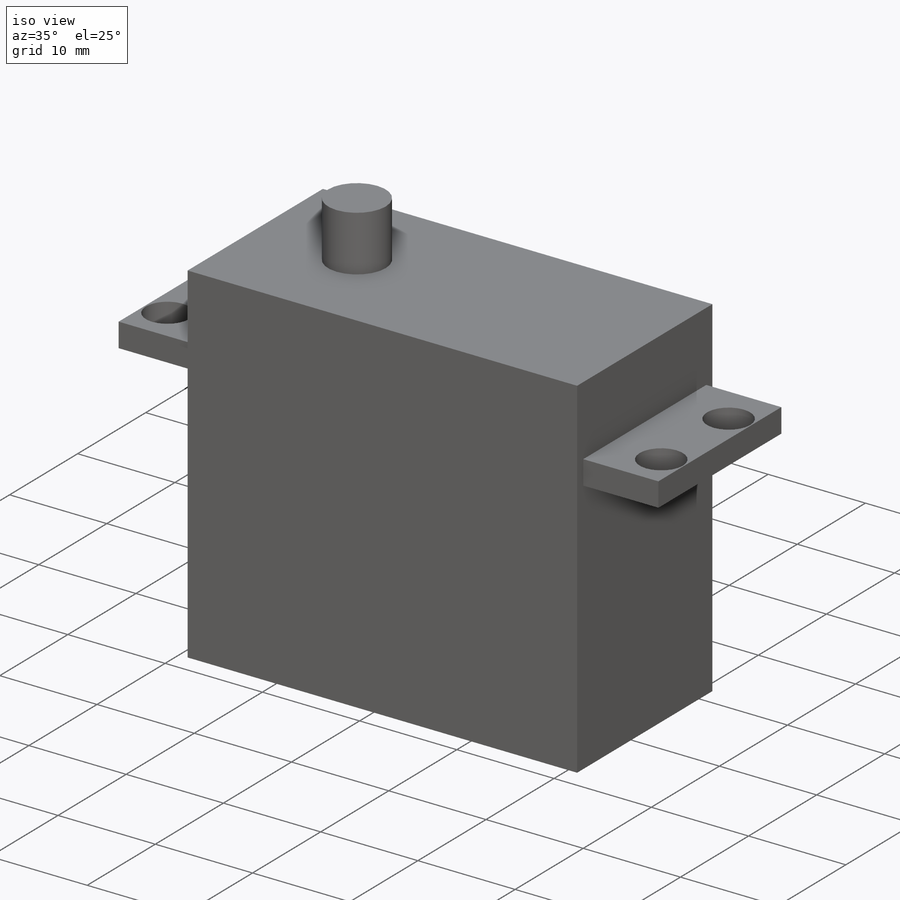
[diagram: iso view]
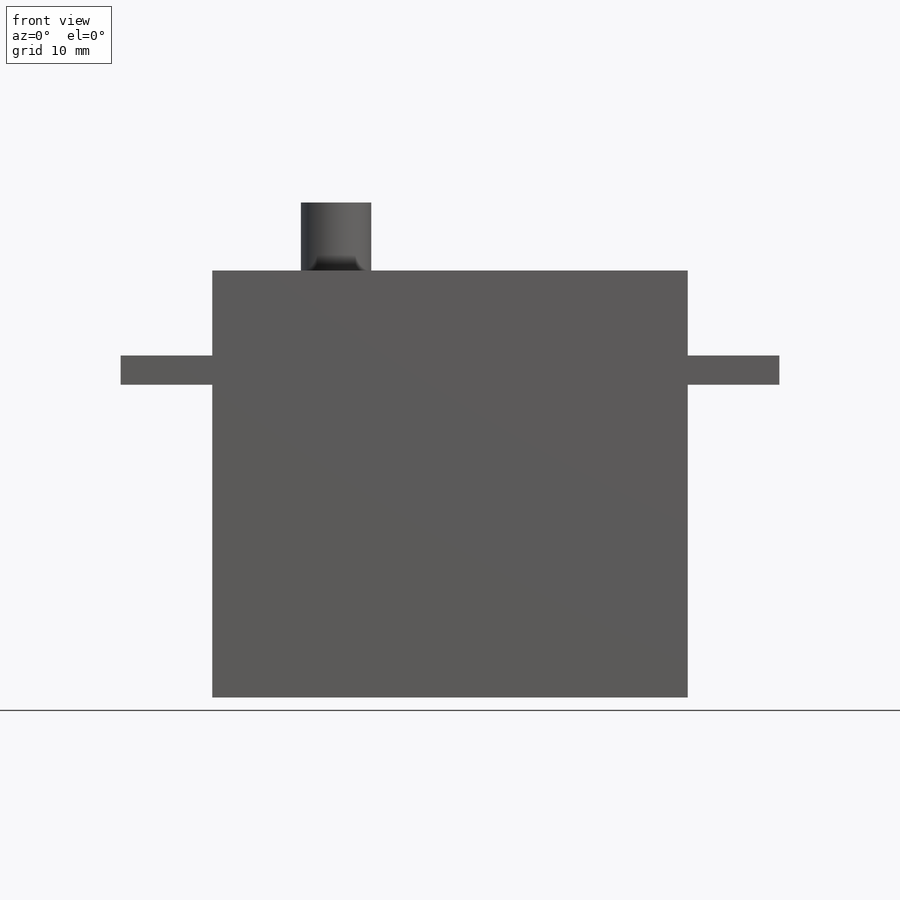
[diagram: front view]
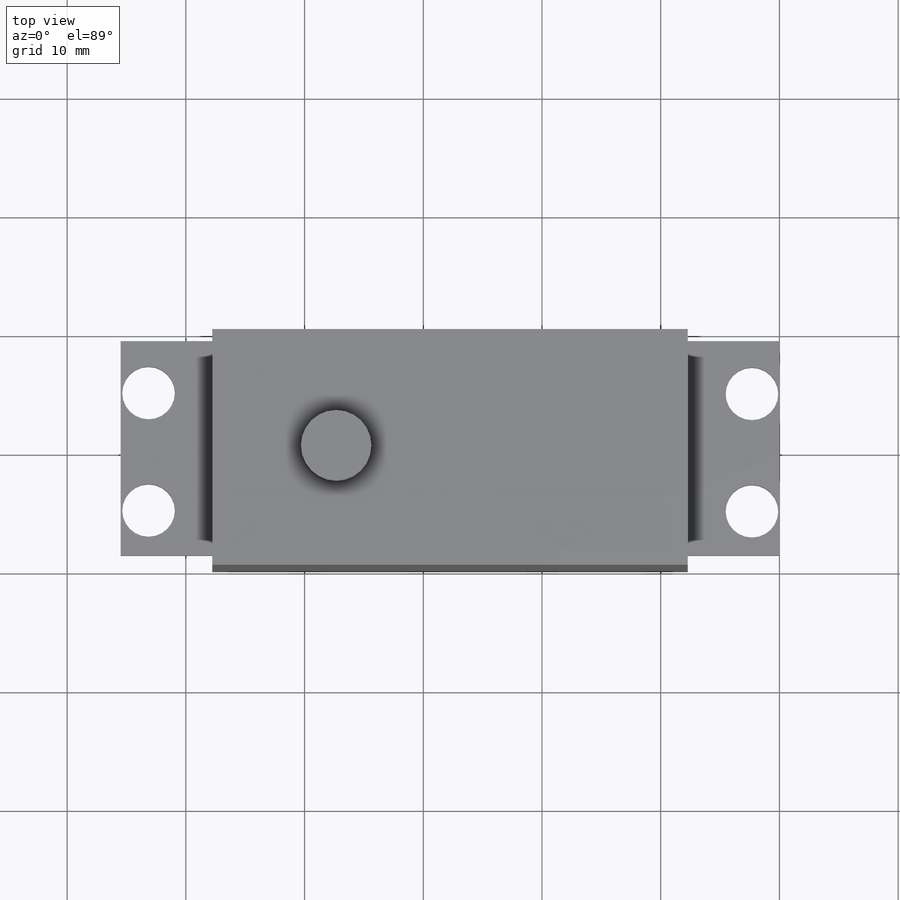
[diagram: top view]
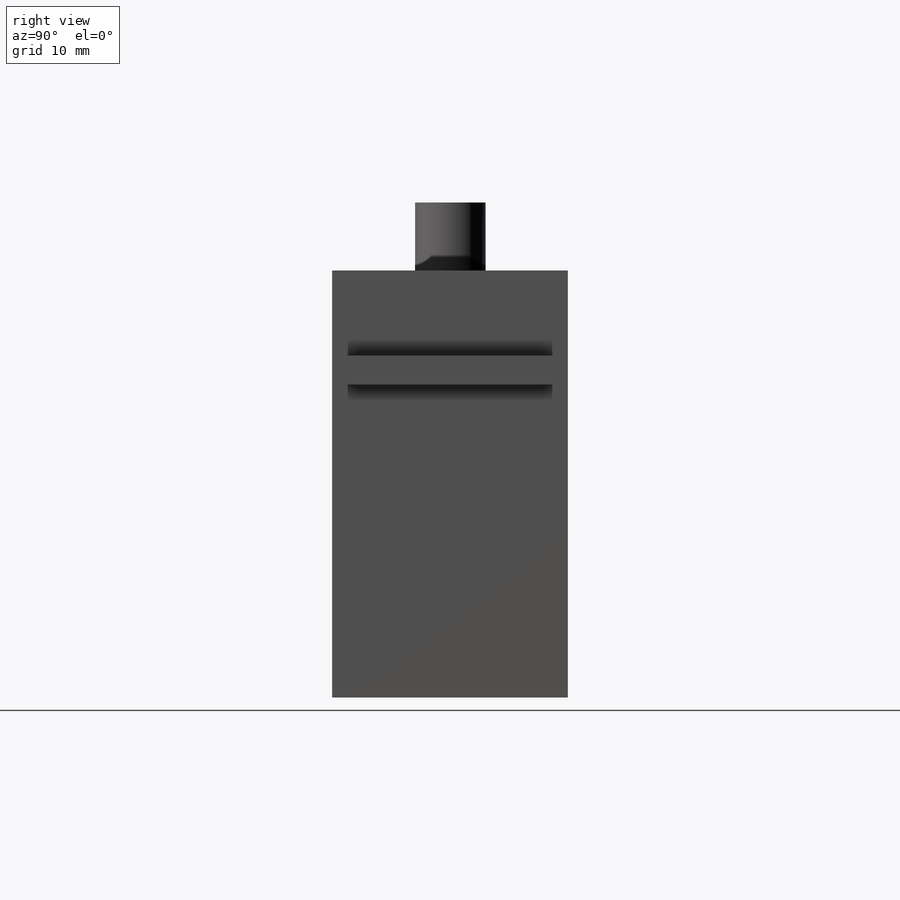
[diagram: right view]
SOLIDWORKS PART (.sldprt)
format: sldprt  version: not decoded by parser v0  size: 307,712 bytes
history: native  units: mm
features: sketch x9, cut_extrude x7, extrude x2, material x1 (+13 scaffold rows collapsed)
feature tree (32):
  scaffold x13  (default folders/planes/origin — collapsed)
  material  "Material <not specified>"
  sketch  "Sketch1"  dims[D1=55.499mm D2=35.9664mm]
  extrude  "Boss-Extrude1"  Depth=19.8628mm
  sketch  "Sketch2"  dims[D1=7.7216mm D2=26.3398mm D3=7.1628mm D4=7.7216mm]
  cut_extrude  "Cut-Extrude1"  [1 undecoded]
  sketch  "Sketch3"  dims[D1=7.7216mm D2=0.0mm D3=0.0mm D4=0.0mm]
  cut_extrude  "Cut-Extrude2"  [1 undecoded]
  sketch  "Sketch4"  dims[c1.D1=4.4323mm c1.D4=4.4323mm c1.D7=4.4323mm c1.D8=4.4323mm c1.D11=4.4323mm c1.D12=4.4323mm c1.D2=4.572mm c1.D3=3.048mm c1.D5=5.461mm c1.D6=4.572mm c1.D9=5.461mm c1.D10=~3.118302mm c2.D11=~2.314703mm c2.D12=~2.314703mm]
  cut_extrude  "Cut-Extrude3"  [1 undecoded]
  sketch  "Sketch5"
  cut_extrude  "Cut-Extrude4"  Depth=0.9017mm
  sketch  "Sketch6"
  cut_extrude  "Cut-Extrude5"  Depth=0.9017mm
  sketch  "Sketch7"
  cut_extrude  "Cut-Extrude6"  Depth=0.9017mm
  sketch  "Sketch8"
  cut_extrude  "Cut-Extrude7"  Depth=0.9017mm
  sketch  "Sketch9"  dims[D1=5.9309mm D2=6.9342mm D3=7.4676mm]
  extrude  "Boss-Extrude2"  Depth=5.7277mm
decode coverage: 11 of 18 modeling features carry decoded parameters
note: ~ marks probable driven/reference dimensions
note: 3 parameter values undecoded
summary: no parameter record found for 3 features
note: suppression state not decoded; provenance and decode notes live in map.json
